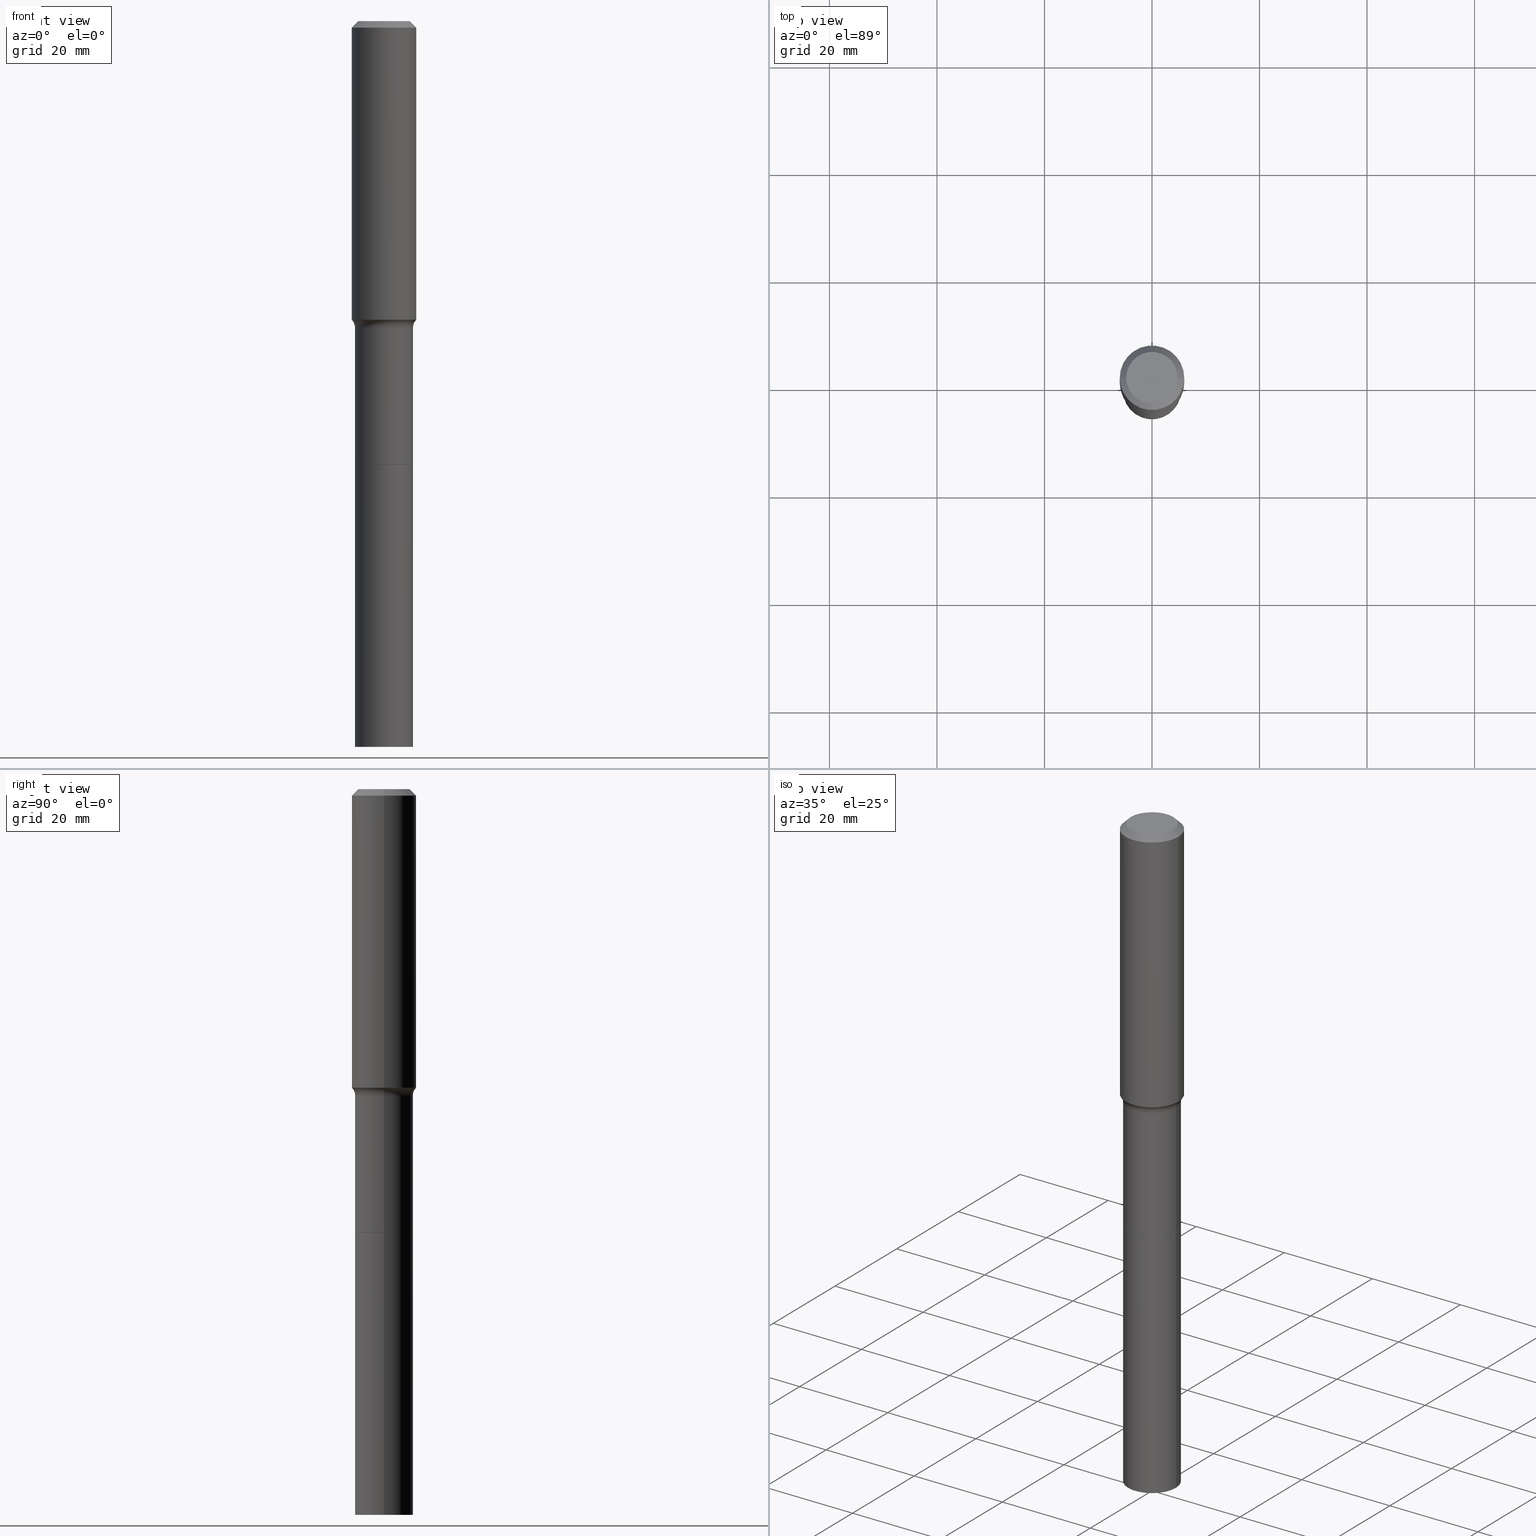
[diagram: canonical four-view strip — front | top / right | iso, engineering-drawing reading convention]
A machine part, canonical four-view strip (front | top / right | iso — engineering-drawing reading convention). The complete STEP part file that produces these views, byte-faithful:
ISO-10303-21;
HEADER;
FILE_DESCRIPTION (( 'STEP AP203' ),
    '1' );
FILE_NAME ('67896.STEP',
    '2025-04-01T15:32:14',
    ( '' ),
    ( '' ),
    'SwSTEP 2.0',
    'SolidWorks 2024',
    '' );
FILE_SCHEMA (( 'CONFIG_CONTROL_DESIGN' ));
ENDSEC;

DATA;
#1 = DIRECTION ( 'NONE',  ( 1.000000000000000000, -6.982962677686261977E-15, 0.000000000000000000 ) ) ;
#2 = CARTESIAN_POINT ( 'NONE',  ( 7.934323541667678728E-29, -1.132811120387658868E-14, -3.244500000000000828 ) ) ;
#3 = AXIS2_PLACEMENT_3D ( 'NONE', #318, #273, #366 ) ;
#4 = PERSON_AND_ORGANIZATION_ROLE ( 'design_supplier' ) ;
#5 = DIRECTION ( 'NONE',  ( 1.000000000000000000, -6.982962677686266711E-15, 0.000000000000000000 ) ) ;
#6 = CARTESIAN_POINT ( 'NONE',  ( 5.354207543847266757E-29, -7.644389360581631556E-15, -2.189440131195000472 ) ) ;
#7 = COORDINATED_UNIVERSAL_TIME_OFFSET ( 5, 0, .BEHIND. ) ;
#8 = DIRECTION ( 'NONE',  ( -2.445468806185136597E-29, 3.491481338843145583E-15, 1.000000000000000000 ) ) ;
#9 = DIRECTION ( 'NONE',  ( 1.000000000000000000, -6.982962677686261977E-15, 0.000000000000000000 ) ) ;
#10 = AXIS2_PLACEMENT_3D ( 'NONE', #414, #55, #93 ) ;
#11 = AXIS2_PLACEMENT_3D ( 'NONE', #163, #77, #398 ) ;
#12 = APPLICATION_PROTOCOL_DEFINITION ( 'international standard', 'config_control_design', 1994, #387 ) ;
#13 = ADVANCED_FACE ( 'NONE', ( #109 ), #155, .T. ) ;
#14 = EDGE_LOOP ( 'NONE', ( #501, #194, #272, #417 ) ) ;
#15 = CLOSED_SHELL ( 'NONE', ( #489, #137, #89, #42 ) ) ;
#16 = CIRCLE ( 'NONE', #277, 0.2125999999999999834 ) ;
#17 = DIRECTION ( 'NONE',  ( 1.000000000000000000, -6.982962677686263555E-15, 0.000000000000000000 ) ) ;
#18 = CIRCLE ( 'NONE', #3, 0.2121000000000000107 ) ;
#19 = ORIENTED_EDGE ( 'NONE', *, *, #441, .F. ) ;
#20 = DIRECTION ( 'NONE',  ( -1.000000000000000000, 7.105427357601001859E-15, 0.000000000000000000 ) ) ;
#21 = CARTESIAN_POINT ( 'NONE',  ( 5.487632001079447088E-29, -7.834884124364020406E-15, -2.244000000000000217 ) ) ;
#22 = LINE ( 'NONE', #178, #47 ) ;
#23 = CC_DESIGN_DATE_AND_TIME_ASSIGNMENT ( #325, #308, ( #247 ) ) ;
#24 = DIRECTION ( 'NONE',  ( -2.445468806185136877E-29, 3.491481338843145188E-15, 1.000000000000000000 ) ) ;
#25 = EDGE_LOOP ( 'NONE', ( #229, #140 ) ) ;
#26 = TOROIDAL_SURFACE ( 'NONE', #462, 0.2925999999999999157, 0.08000000000000008493 ) ;
#27 = FACE_OUTER_BOUND ( 'NONE', #74, .T. ) ;
#28 = ADVANCED_FACE ( 'NONE', ( #195 ), #129, .T. ) ;
#29 = FACE_OUTER_BOUND ( 'NONE', #225, .T. ) ;
#30 = ORIENTED_EDGE ( 'NONE', *, *, #416, .F. ) ;
#31 = CYLINDRICAL_SURFACE ( 'NONE', #84, 0.2125999999999999279 ) ;
#32 = DIRECTION ( 'NONE',  ( -2.445468806185136597E-29, 3.491481338843145583E-15, 1.000000000000000000 ) ) ;
#33 = DIMENSIONAL_EXPONENTS ( 1.000000000000000000, 0.000000000000000000, 0.000000000000000000, 0.000000000000000000, 0.000000000000000000, 0.000000000000000000, 0.000000000000000000 ) ;
#34 = CARTESIAN_POINT ( 'NONE',  ( 0.2361999999999999933, -1.814313362916447440E-15, -0.04724000000000027483 ) ) ;
#35 = ORIENTED_EDGE ( 'NONE', *, *, #410, .F. ) ;
#36 = CARTESIAN_POINT ( 'NONE',  ( 0.000000000000000000, 0.000000000000000000, 0.000000000000000000 ) ) ;
#37 = DIRECTION ( 'NONE',  ( 1.000000000000000000, -6.982962677686275388E-15, 0.000000000000000000 ) ) ;
#38 = ORIENTED_EDGE ( 'NONE', *, *, #320, .T. ) ;
#39 = CIRCLE ( 'NONE', #136, 0.2121000000000000107 ) ;
#40 = VERTEX_POINT ( 'NONE', #307 ) ;
#41 = DIRECTION ( 'NONE',  ( 1.000000000000000000, -6.982962677686269866E-15, 0.000000000000000000 ) ) ;
#42 = ADVANCED_FACE ( 'NONE', ( #392 ), #396, .F. ) ;
#43 = PERSON_AND_ORGANIZATION ( #44, #322 ) ;
#44 = PERSON ( 'UNSPECIFIED', 'UNSPECIFIED', 'UNSPECIFIED', ('UNSPECIFIED'), ('UNSPECIFIED'), ('UNSPECIFIED') ) ;
#45 = DIRECTION ( 'NONE',  ( 1.000000000000000000, -6.982962677686269866E-15, 0.000000000000000000 ) ) ;
#46 = DIRECTION ( 'NONE',  ( -2.445468806185136597E-29, 3.491481338843145583E-15, 1.000000000000000000 ) ) ;
#47 = VECTOR ( 'NONE', #182, 39.37007874015748143 ) ;
#48 = CARTESIAN_POINT ( 'NONE',  ( 7.935546276070771530E-29, -1.132985694454601097E-14, -3.245000000000000995 ) ) ;
#49 = CARTESIAN_POINT ( 'NONE',  ( 0.2340917038704662112, -9.279042991865084568E-15, -2.189440131195000472 ) ) ;
#50 = DIRECTION ( 'NONE',  ( 0.7071067811865453523, -7.319954787623248157E-15, -0.7071067811865496822 ) ) ;
#51 = MECHANICAL_CONTEXT ( 'NONE', #387, 'mechanical' ) ;
#52 = LENGTH_MEASURE_WITH_UNIT ( LENGTH_MEASURE( 0.02539999999999999897 ), #130 );
#53 = DIRECTION ( 'NONE',  ( -2.445468806185136597E-29, 3.491481338843145583E-15, 1.000000000000000000 ) ) ;
#54 = AXIS2_PLACEMENT_3D ( 'NONE', #271, #267, #1 ) ;
#55 = DIRECTION ( 'NONE',  ( 2.438088387897960049E-29, -3.491481338843145188E-15, -1.000000000000000000 ) ) ;
#56 = LOCAL_TIME ( 11, 32, 14.00000000000000000, #7 ) ;
#57 = CARTESIAN_POINT ( 'NONE',  ( 7.935546276070771530E-29, -1.132985694454601097E-14, -3.245000000000000995 ) ) ;
#58 = ORIENTED_EDGE ( 'NONE', *, *, #202, .T. ) ;
#59 = CYLINDRICAL_SURFACE ( 'NONE', #75, 0.2126000000000001777 ) ;
#60 = FACE_OUTER_BOUND ( 'NONE', #215, .T. ) ;
#61 = ORIENTED_EDGE ( 'NONE', *, *, #316, .F. ) ;
#62 = DIRECTION ( 'NONE',  ( -2.445468806185136597E-29, 3.491481338843145583E-15, 1.000000000000000000 ) ) ;
#63 = ADVANCED_FACE ( 'NONE', ( #27 ), #31, .T. ) ;
#64 = VECTOR ( 'NONE', #488, 39.37007874015748854 ) ;
#65 = ORIENTED_EDGE ( 'NONE', *, *, #213, .F. ) ;
#66 = FACE_OUTER_BOUND ( 'NONE', #508, .T. ) ;
#67 = ORIENTED_EDGE ( 'NONE', *, *, #316, .T. ) ;
#68 = ADVANCED_FACE ( 'NONE', ( #95 ), #442, .F. ) ;
#69 = CARTESIAN_POINT ( 'NONE',  ( 7.935546276070771530E-29, -1.132985694454601097E-14, -3.245000000000000995 ) ) ;
#70 = CARTESIAN_POINT ( 'NONE',  ( -0.2925999999999999157, -5.755836079529967466E-15, -2.244000000000000217 ) ) ;
#71 = EDGE_LOOP ( 'NONE', ( #221, #275, #162, #19 ) ) ;
#72 = EDGE_CURVE ( 'NONE', #177, #157, #404, .T. ) ;
#73 = CARTESIAN_POINT ( 'NONE',  ( 5.348678654829147801E-29, -7.636495572371179555E-15, -2.187179260394222169 ) ) ;
#74 = EDGE_LOOP ( 'NONE', ( #108, #201, #220, #35 ) ) ;
#75 = AXIS2_PLACEMENT_3D ( 'NONE', #57, #176, #17 ) ;
#76 = CC_DESIGN_APPROVAL ( #80, ( #406 ) ) ;
#77 = DIRECTION ( 'NONE',  ( -2.445468806185136597E-29, 3.491481338843145583E-15, 1.000000000000000000 ) ) ;
#78 = CARTESIAN_POINT ( 'NONE',  ( 0.000000000000000000, 0.000000000000000000, 0.000000000000000000 ) ) ;
#79 = EDGE_LOOP ( 'NONE', ( #518, #391, #472, #464 ) ) ;
#80 = APPROVAL ( #113, 'UNSPECIFIED' ) ;
#81 = VERTEX_POINT ( 'NONE', #323 ) ;
#82 = EDGE_CURVE ( 'NONE', #496, #293, #437, .T. ) ;
#83 = EDGE_LOOP ( 'NONE', ( #431, #352 ) ) ;
#84 = AXIS2_PLACEMENT_3D ( 'NONE', #128, #367, #447 ) ;
#85 = AXIS2_PLACEMENT_3D ( 'NONE', #6, #8, #289 ) ;
#86 = CARTESIAN_POINT ( 'NONE',  ( 0.2125999999999999279, -1.484577865276100080E-15, 1.036675182534215730E-29 ) ) ;
#87 = CALENDAR_DATE ( 2025, 1, 4 ) ;
#88 = CARTESIAN_POINT ( 'NONE',  ( 5.354207543847266757E-29, -7.644389360581631556E-15, -2.189440131195000472 ) ) ;
#89 = ADVANCED_FACE ( 'NONE', ( #60 ), #59, .T. ) ;
#90 = DIRECTION ( 'NONE',  ( 1.000000000000000000, -6.982962677686263555E-15, 0.000000000000000000 ) ) ;
#91 = AXIS2_PLACEMENT_3D ( 'NONE', #276, #409, #37 ) ;
#92 = DIRECTION ( 'NONE',  ( 1.000000000000000000, -6.982962677686269866E-15, 0.000000000000000000 ) ) ;
#93 = DIRECTION ( 'NONE',  ( -1.000000000000000000, 6.982962677686265922E-15, -4.876176775795935793E-29 ) ) ;
#94 = APPROVAL_ROLE ( '' ) ;
#95 = FACE_OUTER_BOUND ( 'NONE', #25, .T. ) ;
#96 = EDGE_LOOP ( 'NONE', ( #121, #148, #303, #270 ) ) ;
#97 = CARTESIAN_POINT ( 'NONE',  ( 1.155239464041865331E-30, -1.649375784469511612E-16, -0.04724000000000027483 ) ) ;
#98 = DIRECTION ( 'NONE',  ( 1.000000000000000000, -6.982962677686267499E-15, 0.000000000000000000 ) ) ;
#99 = AXIS2_PLACEMENT_3D ( 'NONE', #70, #304, #20 ) ;
#100 = EDGE_LOOP ( 'NONE', ( #469, #314, #188, #493 ) ) ;
#101 = APPROVAL ( #138, 'UNSPECIFIED' ) ;
#102 = LINE ( 'NONE', #263, #477 ) ;
#103 = CARTESIAN_POINT ( 'NONE',  ( 7.935546276070771530E-29, -1.132985694454601097E-14, -3.245000000000000995 ) ) ;
#104 = EDGE_CURVE ( 'NONE', #466, #381, #219, .T. ) ;
#105 = ORIENTED_EDGE ( 'NONE', *, *, #159, .F. ) ;
#106 = ORIENTED_EDGE ( 'NONE', *, *, #120, .F. ) ;
#107 = CARTESIAN_POINT ( 'NONE',  ( 7.935546276070771530E-29, -1.132985694454601097E-14, -3.245000000000000995 ) ) ;
#108 = ORIENTED_EDGE ( 'NONE', *, *, #72, .T. ) ;
#109 = FACE_OUTER_BOUND ( 'NONE', #100, .T. ) ;
#110 = DATE_TIME_ROLE ( 'classification_date' ) ;
#111 = CARTESIAN_POINT ( 'NONE',  ( -0.2125999999999999834, -8.070883807894330677E-15, -3.244500000000000828 ) ) ;
#112 = ORIENTED_EDGE ( 'NONE', *, *, #386, .T. ) ;
#113 = APPROVAL_STATUS ( 'not_yet_approved' ) ;
#114 = DATE_AND_TIME ( #345, #328 ) ;
#115 = FACE_OUTER_BOUND ( 'NONE', #14, .T. ) ;
#116 = ORIENTED_EDGE ( 'NONE', *, *, #72, .F. ) ;
#117 = CIRCLE ( 'NONE', #99, 0.08000000000000009881 ) ;
#118 = DIRECTION ( 'NONE',  ( 1.000000000000000000, -6.982962677686266711E-15, 0.000000000000000000 ) ) ;
#119 = PERSON_AND_ORGANIZATION_ROLE ( 'design_owner' ) ;
#120 = EDGE_CURVE ( 'NONE', #264, #353, #39, .T. ) ;
#121 = ORIENTED_EDGE ( 'NONE', *, *, #330, .F. ) ;
#122 = ORIENTED_EDGE ( 'NONE', *, *, #153, .T. ) ;
#123 = CARTESIAN_POINT ( 'NONE',  ( 0.2340917038704659892, -9.279042991865081412E-15, -2.189440131195000472 ) ) ;
#124 = AXIS2_PLACEMENT_3D ( 'NONE', #21, #351, #183 ) ;
#125 = LINE ( 'NONE', #123, #64 ) ;
#126 = SECURITY_CLASSIFICATION_LEVEL ( 'unclassified' ) ;
#127 =( CONVERSION_BASED_UNIT ( 'INCH', #52 ) LENGTH_UNIT ( ) NAMED_UNIT ( #33 ) );
#128 = CARTESIAN_POINT ( 'NONE',  ( 0.000000000000000000, 0.000000000000000000, 0.000000000000000000 ) ) ;
#129 = CONICAL_SURFACE ( 'NONE', #512, 0.2121000000000000107, 0.7853981633972434429 ) ;
#130 =( LENGTH_UNIT ( ) NAMED_UNIT ( * ) SI_UNIT ( $, .METRE. ) );
#131 = CIRCLE ( 'NONE', #360, 0.2362000000000002709 ) ;
#132 = CC_DESIGN_APPROVAL ( #487, ( #247 ) ) ;
#133 = CARTESIAN_POINT ( 'NONE',  ( 0.2362000000000001321, -1.649375784469497117E-15, 1.151752954443000789E-29 ) ) ;
#134 = CARTESIAN_POINT ( 'NONE',  ( -0.2362000000000001321, 1.678301941865357577E-15, -1.161852468318209457E-29 ) ) ;
#135 = FACE_OUTER_BOUND ( 'NONE', #79, .T. ) ;
#136 = AXIS2_PLACEMENT_3D ( 'NONE', #456, #374, #9 ) ;
#137 = ADVANCED_FACE ( 'NONE', ( #173 ), #287, .T. ) ;
#138 = APPROVAL_STATUS ( 'not_yet_approved' ) ;
#139 = DIRECTION ( 'NONE',  ( 1.000000000000000000, -6.982962677686266711E-15, 0.000000000000000000 ) ) ;
#140 = ORIENTED_EDGE ( 'NONE', *, *, #240, .T. ) ;
#141 = EDGE_CURVE ( 'NONE', #362, #331, #411, .T. ) ;
#142 = DIRECTION ( 'NONE',  ( -2.445468806185136597E-29, 3.491481338843145583E-15, 1.000000000000000000 ) ) ;
#143 = AXIS2_PLACEMENT_3D ( 'NONE', #2, #164, #45 ) ;
#144 = AXIS2_PLACEMENT_3D ( 'NONE', #495, #185, #139 ) ;
#145 = APPROVAL_PERSON_ORGANIZATION ( #146, #101, #457 ) ;
#146 = PERSON_AND_ORGANIZATION ( #44, #322 ) ;
#147 = CARTESIAN_POINT ( 'NONE',  ( 0.000000000000000000, 0.000000000000000000, 0.000000000000000000 ) ) ;
#148 = ORIENTED_EDGE ( 'NONE', *, *, #499, .T. ) ;
#149 = DIRECTION ( 'NONE',  ( -2.445468806185136597E-29, 3.491481338843145583E-15, 1.000000000000000000 ) ) ;
#150 = PERSON_AND_ORGANIZATION ( #44, #322 ) ;
#151 = FACE_OUTER_BOUND ( 'NONE', #96, .T. ) ;
#152 = ORIENTED_EDGE ( 'NONE', *, *, #454, .F. ) ;
#153 = EDGE_CURVE ( 'NONE', #293, #40, #117, .T. ) ;
#154 = APPROVAL_STATUS ( 'not_yet_approved' ) ;
#155 = CONICAL_SURFACE ( 'NONE', #299, 0.2340917038704659892, 0.7504915783576586730 ) ;
#156 = CIRCLE ( 'NONE', #514, 0.2125999999999998724 ) ;
#157 = VERTEX_POINT ( 'NONE', #111 ) ;
#158 = CARTESIAN_POINT ( 'NONE',  ( 7.935546276070771530E-29, -1.132985694454601097E-14, -3.245000000000000995 ) ) ;
#159 = EDGE_CURVE ( 'NONE', #362, #310, #390, .T. ) ;
#160 = CARTESIAN_POINT ( 'NONE',  ( -0.2362000000000002709, -5.958193630505821583E-15, -2.187179260394222169 ) ) ;
#161 = LINE ( 'NONE', #324, #234 ) ;
#162 = ORIENTED_EDGE ( 'NONE', *, *, #410, .T. ) ;
#163 = CARTESIAN_POINT ( 'NONE',  ( -9.427742298522546243E-47, 1.346031739168365344E-32, 3.855188123715862256E-18 ) ) ;
#164 = DIRECTION ( 'NONE',  ( -2.445468806185136597E-29, 3.491481338843145583E-15, 1.000000000000000000 ) ) ;
#165 = VECTOR ( 'NONE', #420, 39.37007874015748143 ) ;
#166 = DIRECTION ( 'NONE',  ( 0.7071067811864026886, -2.468850131080739687E-15, 0.7071067811866923458 ) ) ;
#167 = COORDINATED_UNIVERSAL_TIME_OFFSET ( 5, 0, .BEHIND. ) ;
#168 = DIRECTION ( 'NONE',  ( 1.000000000000000000, -6.982962677686269077E-15, 0.000000000000000000 ) ) ;
#169 = PERSON_AND_ORGANIZATION ( #44, #322 ) ;
#170 = PRODUCT ( '67896', '67896', '', ( #51 ) ) ;
#171 = CARTESIAN_POINT ( 'NONE',  ( 1.155239464041865331E-30, -1.649375784469511612E-16, -0.04724000000000027483 ) ) ;
#172 = APPLICATION_CONTEXT ( 'configuration controlled 3d designs of mechanical parts and assemblies' ) ;
#173 = FACE_OUTER_BOUND ( 'NONE', #83, .T. ) ;
#174 = CIRCLE ( 'NONE', #393, 0.2362000000000002709 ) ;
#175 = CARTESIAN_POINT ( 'NONE',  ( -0.2361999999999999933, 1.484438206022545019E-15, -0.04724000000000027483 ) ) ;
#176 = DIRECTION ( 'NONE',  ( -2.445468806185136597E-29, 3.491481338843145583E-15, 1.000000000000000000 ) ) ;
#177 = VERTEX_POINT ( 'NONE', #181 ) ;
#178 = CARTESIAN_POINT ( 'NONE',  ( -0.2121000000000000107, -9.822795801998838791E-15, -3.245000000000000995 ) ) ;
#179 = TOROIDAL_SURFACE ( 'NONE', #124, 0.2925999999999999157, 0.08000000000000008493 ) ;
#180 = APPROVAL_PERSON_ORGANIZATION ( #446, #80, #94 ) ;
#181 = CARTESIAN_POINT ( 'NONE',  ( 0.2125999999999999834, -1.281268906915268895E-14, -3.244500000000000828 ) ) ;
#182 = DIRECTION ( 'NONE',  ( -0.7071067811864026886, 7.493145998869830357E-15, 0.7071067811866923458 ) ) ;
#183 = DIRECTION ( 'NONE',  ( 1.000000000000000000, -6.982962677686268288E-15, 4.883557194083114022E-29 ) ) ;
#184 = EDGE_LOOP ( 'NONE', ( #306, #58, #241, #235 ) ) ;
#185 = DIRECTION ( 'NONE',  ( -2.445468806185136597E-29, 3.491481338843145583E-15, 1.000000000000000000 ) ) ;
#186 = AXIS2_PLACEMENT_3D ( 'NONE', #78, #500, #297 ) ;
#187 = CONICAL_SURFACE ( 'NONE', #377, 0.2361999999999999933, 0.7853981633974452814 ) ;
#188 = ORIENTED_EDGE ( 'NONE', *, *, #274, .F. ) ;
#189 = CARTESIAN_POINT ( 'NONE',  ( 0.2125999999999998724, -9.319461989640119105E-15, -2.244000000000000217 ) ) ;
#190 = CC_DESIGN_PERSON_AND_ORGANIZATION_ASSIGNMENT ( #358, #119, ( #170 ) ) ;
#191 = VERTEX_POINT ( 'NONE', #189 ) ;
#192 = APPROVAL_DATE_TIME ( #236, #80 ) ;
#193 = FACE_OUTER_BOUND ( 'NONE', #71, .T. ) ;
#194 = ORIENTED_EDGE ( 'NONE', *, *, #104, .T. ) ;
#195 = FACE_OUTER_BOUND ( 'NONE', #426, .T. ) ;
#196 = CARTESIAN_POINT ( 'NONE',  ( -0.2126000000000000112, -1.343292627402269149E-14, -3.245000000000000995 ) ) ;
#197 = CIRCLE ( 'NONE', #11, 0.1889600000000000168 ) ;
#198 = VERTEX_POINT ( 'NONE', #34 ) ;
#199 = ADVANCED_FACE ( 'NONE', ( #259 ), #179, .F. ) ;
#200 = CARTESIAN_POINT ( 'NONE',  ( -0.2340917038704659892, -5.981067763712990381E-15, -2.189440131195000472 ) ) ;
#201 = ORIENTED_EDGE ( 'NONE', *, *, #296, .T. ) ;
#202 = EDGE_CURVE ( 'NONE', #466, #81, #174, .T. ) ;
#203 = AXIS2_PLACEMENT_3D ( 'NONE', #147, #142, #226 ) ;
#204 = DIRECTION ( 'NONE',  ( -1.000000000000000000, 6.982962677686266711E-15, 0.000000000000000000 ) ) ;
#205 = CC_DESIGN_APPROVAL ( #101, ( #335 ) ) ;
#206 = DIRECTION ( 'NONE',  ( -2.445468806185136597E-29, 3.491481338843145583E-15, 1.000000000000000000 ) ) ;
#207 = EDGE_CURVE ( 'NONE', #331, #317, #102, .T. ) ;
#208 =( NAMED_UNIT ( * ) PLANE_ANGLE_UNIT ( ) SI_UNIT ( $, .RADIAN. ) );
#209 = DIRECTION ( 'NONE',  ( -2.445468806185136597E-29, 3.491481338843145583E-15, 1.000000000000000000 ) ) ;
#210 = DIRECTION ( 'NONE',  ( 1.000000000000000000, -6.982962677686267499E-15, 0.000000000000000000 ) ) ;
#211 = AXIS2_PLACEMENT_3D ( 'NONE', #88, #370, #5 ) ;
#212 = CARTESIAN_POINT ( 'NONE',  ( 7.935546276070771530E-29, -1.132985694454601097E-14, -3.245000000000000995 ) ) ;
#213 = EDGE_CURVE ( 'NONE', #310, #317, #415, .T. ) ;
#214 = VECTOR ( 'NONE', #50, 39.37007874015748143 ) ;
#215 = EDGE_LOOP ( 'NONE', ( #105, #344, #516, #65 ) ) ;
#216 = CYLINDRICAL_SURFACE ( 'NONE', #479, 0.2126000000000001777 ) ;
#217 = ADVANCED_FACE ( 'NONE', ( #115 ), #458, .T. ) ;
#218 = CARTESIAN_POINT ( 'NONE',  ( 5.487632001079447088E-29, -7.834884124364020406E-15, -2.244000000000000217 ) ) ;
#219 = LINE ( 'NONE', #134, #255 ) ;
#220 = ORIENTED_EDGE ( 'NONE', *, *, #380, .F. ) ;
#221 = ORIENTED_EDGE ( 'NONE', *, *, #296, .F. ) ;
#222 = AXIS2_PLACEMENT_3D ( 'NONE', #69, #511, #389 ) ;
#223 = CIRCLE ( 'NONE', #242, 0.1889600000000000168 ) ;
#224 = CARTESIAN_POINT ( 'NONE',  ( 5.354207543847266757E-29, -7.644389360581631556E-15, -2.189440131195000472 ) ) ;
#225 = EDGE_LOOP ( 'NONE', ( #424, #106 ) ) ;
#226 = DIRECTION ( 'NONE',  ( 1.000000000000000000, -6.982962677686266711E-15, 4.876176775795936353E-29 ) ) ;
#227 = ORIENTED_EDGE ( 'NONE', *, *, #153, .F. ) ;
#228 = CYLINDRICAL_SURFACE ( 'NONE', #203, 0.2362000000000001321 ) ;
#229 = ORIENTED_EDGE ( 'NONE', *, *, #454, .T. ) ;
#230 = ORIENTED_EDGE ( 'NONE', *, *, #408, .T. ) ;
#231 = COORDINATED_UNIVERSAL_TIME_OFFSET ( 5, 0, .BEHIND. ) ;
#232 = CC_DESIGN_PERSON_AND_ORGANIZATION_ASSIGNMENT ( #43, #4, ( #406 ) ) ;
#233 = CARTESIAN_POINT ( 'NONE',  ( 5.487632001079447088E-29, -7.834884124364020406E-15, -2.244000000000000217 ) ) ;
#234 = VECTOR ( 'NONE', #166, 39.37007874015748143 ) ;
#235 = ORIENTED_EDGE ( 'NONE', *, *, #507, .F. ) ;
#236 = DATE_AND_TIME ( #87, #291 ) ;
#237 = DIRECTION ( 'NONE',  ( 1.000000000000000000, -6.982962677686265922E-15, 4.876176775795935793E-29 ) ) ;
#238 = EDGE_LOOP ( 'NONE', ( #337, #122, #421, #395 ) ) ;
#239 = CYLINDRICAL_SURFACE ( 'NONE', #455, 0.2125999999999999279 ) ;
#240 = EDGE_CURVE ( 'NONE', #407, #355, #223, .T. ) ;
#241 = ORIENTED_EDGE ( 'NONE', *, *, #375, .T. ) ;
#242 = AXIS2_PLACEMENT_3D ( 'NONE', #418, #62, #348 ) ;
#243 = ORIENTED_EDGE ( 'NONE', *, *, #240, .F. ) ;
#244 = ADVANCED_FACE ( 'NONE', ( #29 ), #425, .F. ) ;
#245 = CARTESIAN_POINT ( 'NONE',  ( 5.487632001079447088E-29, -7.834884124364020406E-15, -2.244000000000000217 ) ) ;
#246 = PERSON_AND_ORGANIZATION_ROLE ( 'creator' ) ;
#247 = PRODUCT_DEFINITION ( 'UNKNOWN', '', #406, #440 ) ;
#248 = DIRECTION ( 'NONE',  ( 1.000000000000000000, 0.000000000000000000, 0.000000000000000000 ) ) ;
#249 = CIRCLE ( 'NONE', #85, 0.2340917038704659892 ) ;
#250 = ADVANCED_FACE ( 'NONE', ( #385 ), #26, .F. ) ;
#251 = CARTESIAN_POINT ( 'NONE',  ( 1.299766670487400218E-28, -1.855722331595131973E-14, -5.315000000000000391 ) ) ;
#252 = COORDINATED_UNIVERSAL_TIME_OFFSET ( 5, 0, .BEHIND. ) ;
#253 = EDGE_LOOP ( 'NONE', ( #227, #349, #403, #475 ) ) ;
#254 = ADVANCED_FACE ( 'NONE', ( #151 ), #346, .T. ) ;
#255 = VECTOR ( 'NONE', #292, 39.37007874015748143 ) ;
#256 = LOCAL_TIME ( 11, 32, 14.00000000000000000, #167 ) ;
#257 = ADVANCED_BREP_SHAPE_REPRESENTATION ( '67896', ( #461, #480, #384 ), #412 ) ;
#258 = CARTESIAN_POINT ( 'NONE',  ( -0.2126000000000003720, -1.343292627402268675E-14, -5.315000000000000391 ) ) ;
#259 = FACE_OUTER_BOUND ( 'NONE', #253, .T. ) ;
#260 = CONICAL_SURFACE ( 'NONE', #54, 0.2121000000000000107, 0.7853981633972434429 ) ;
#261 = CARTESIAN_POINT ( 'NONE',  ( -0.2125999999999999279, 1.510613856225972483E-15, -1.045765600188192591E-29 ) ) ;
#262 = CARTESIAN_POINT ( 'NONE',  ( 5.354207543847266757E-29, -7.644389360581631556E-15, -2.189440131195000472 ) ) ;
#263 = CARTESIAN_POINT ( 'NONE',  ( 0.2126000000000001777, -1.281443480982211124E-14, -3.245000000000000995 ) ) ;
#264 = VERTEX_POINT ( 'NONE', #302 ) ;
#265 = EDGE_LOOP ( 'NONE', ( #436, #152, #340, #363 ) ) ;
#266 = CALENDAR_DATE ( 2025, 1, 4 ) ;
#267 = DIRECTION ( 'NONE',  ( -2.445468806185136597E-29, 3.491481338843145583E-15, 1.000000000000000000 ) ) ;
#268 = DIRECTION ( 'NONE',  ( -2.438088387897960049E-29, 3.491481338843145188E-15, 1.000000000000000000 ) ) ;
#269 = AXIS2_PLACEMENT_3D ( 'NONE', #218, #209, #92 ) ;
#270 = ORIENTED_EDGE ( 'NONE', *, *, #202, .F. ) ;
#271 = CARTESIAN_POINT ( 'NONE',  ( 7.935546276070771530E-29, -1.132985694454601097E-14, -3.245000000000000995 ) ) ;
#272 = ORIENTED_EDGE ( 'NONE', *, *, #294, .F. ) ;
#273 = DIRECTION ( 'NONE',  ( -2.445468806185136597E-29, 3.491481338843145583E-15, 1.000000000000000000 ) ) ;
#274 = EDGE_CURVE ( 'NONE', #81, #466, #131, .T. ) ;
#275 = ORIENTED_EDGE ( 'NONE', *, *, #416, .T. ) ;
#276 = CARTESIAN_POINT ( 'NONE',  ( 0.2925999999999999157, -9.878099003855020758E-15, -2.244000000000000217 ) ) ;
#277 = AXIS2_PLACEMENT_3D ( 'NONE', #471, #32, #428 ) ;
#278 = DIRECTION ( 'NONE',  ( -1.000000000000000000, 6.982962677686265922E-15, -4.876176775795935793E-29 ) ) ;
#279 = DIRECTION ( 'NONE',  ( -1.000000000000000000, 6.982962677686266711E-15, 0.000000000000000000 ) ) ;
#280 = PERSON_AND_ORGANIZATION_ROLE ( 'classification_officer' ) ;
#281 = CARTESIAN_POINT ( 'NONE',  ( -4.713871149261273121E-47, 6.730158695841826722E-33, 1.927594061857931128E-18 ) ) ;
#282 = ADVANCED_FACE ( 'NONE', ( #423 ), #228, .T. ) ;
#283 = DIRECTION ( 'NONE',  ( 0.000000000000000000, 0.000000000000000000, 1.000000000000000000 ) ) ;
#284 = AXIS2_PLACEMENT_3D ( 'NONE', #281, #364, #278 ) ;
#285 = APPROVAL_PERSON_ORGANIZATION ( #150, #487, #513 ) ;
#286 = CARTESIAN_POINT ( 'NONE',  ( 0.1889600000000000168, -1.540873453589747738E-15, 3.855188123725863225E-18 ) ) ;
#287 = PLANE ( 'NONE',  #10 ) ;
#288 = DIRECTION ( 'NONE',  ( -2.445468806185136597E-29, 3.491481338843145583E-15, 1.000000000000000000 ) ) ;
#289 = DIRECTION ( 'NONE',  ( 1.000000000000000000, -6.982962677686266711E-15, 0.000000000000000000 ) ) ;
#290 = CIRCLE ( 'NONE', #492, 0.2126000000000003443 ) ;
#291 = LOCAL_TIME ( 11, 32, 14.00000000000000000, #427 ) ;
#292 = DIRECTION ( 'NONE',  ( -2.445468806185136877E-29, 3.491481338843145188E-15, 1.000000000000000000 ) ) ;
#293 = VERTEX_POINT ( 'NONE', #295 ) ;
#294 = EDGE_CURVE ( 'NONE', #198, #381, #300, .T. ) ;
#295 = CARTESIAN_POINT ( 'NONE',  ( -0.2340917038704662112, -5.981067763712988803E-15, -2.189440131195000472 ) ) ;
#296 = EDGE_CURVE ( 'NONE', #157, #40, #498, .T. ) ;
#297 = DIRECTION ( 'NONE',  ( 1.000000000000000000, -6.982962677686266711E-15, 4.876176775795936353E-29 ) ) ;
#298 = ORIENTED_EDGE ( 'NONE', *, *, #342, .F. ) ;
#299 = AXIS2_PLACEMENT_3D ( 'NONE', #262, #422, #118 ) ;
#300 = CIRCLE ( 'NONE', #144, 0.2361999999999999933 ) ;
#301 = CIRCLE ( 'NONE', #515, 0.2361999999999999933 ) ;
#302 = CARTESIAN_POINT ( 'NONE',  ( -0.2121000000000000107, -9.820146574824726801E-15, -3.245000000000000995 ) ) ;
#303 = ORIENTED_EDGE ( 'NONE', *, *, #333, .T. ) ;
#304 = DIRECTION ( 'NONE',  ( 7.105427357601001859E-15, 1.000000000000000000, -3.491481338843145583E-15 ) ) ;
#305 = ADVANCED_FACE ( 'NONE', ( #66 ), #485, .T. ) ;
#306 = ORIENTED_EDGE ( 'NONE', *, *, #104, .F. ) ;
#307 = CARTESIAN_POINT ( 'NONE',  ( -0.2125999999999998724, -8.070883807894330677E-15, -2.244000000000000217 ) ) ;
#308 = DATE_TIME_ROLE ( 'creation_date' ) ;
#309 = DIRECTION ( 'NONE',  ( -2.445468806185136597E-29, 3.491481338843145583E-15, 1.000000000000000000 ) ) ;
#310 = VERTEX_POINT ( 'NONE', #196 ) ;
#311 = CALENDAR_DATE ( 2025, 1, 4 ) ;
#312 = CIRCLE ( 'NONE', #91, 0.08000000000000009881 ) ;
#313 = VECTOR ( 'NONE', #478, 39.37007874015748854 ) ;
#314 = ORIENTED_EDGE ( 'NONE', *, *, #330, .T. ) ;
#315 = APPLICATION_PROTOCOL_DEFINITION ( 'international standard', 'config_control_design', 1994, #172 ) ;
#316 = EDGE_CURVE ( 'NONE', #353, #177, #161, .T. ) ;
#317 = VERTEX_POINT ( 'NONE', #474 ) ;
#318 = CARTESIAN_POINT ( 'NONE',  ( 7.935546276070771530E-29, -1.132985694454601097E-14, -3.245000000000000995 ) ) ;
#319 = UNCERTAINTY_MEASURE_WITH_UNIT (LENGTH_MEASURE( 1.000000000000000082E-05 ), #127, 'distance_accuracy_value', 'NONE');
#320 = EDGE_CURVE ( 'NONE', #353, #264, #18, .T. ) ;
#321 = AXIS2_PLACEMENT_3D ( 'NONE', #224, #309, #399 ) ;
#322 = ORGANIZATION ( 'UNSPECIFIED', 'UNSPECIFIED', '' ) ;
#323 = CARTESIAN_POINT ( 'NONE',  ( 0.2362000000000002709, -9.285871356840677658E-15, -2.187179260394222169 ) ) ;
#324 = CARTESIAN_POINT ( 'NONE',  ( 0.2121000000000000107, -1.281094332848326666E-14, -3.245000000000000995 ) ) ;
#325 = DATE_AND_TIME ( #266, #256 ) ;
#326 = LINE ( 'NONE', #373, #214 ) ;
#327 = VECTOR ( 'NONE', #491, 39.37007874015748143 ) ;
#328 = LOCAL_TIME ( 11, 32, 14.00000000000000000, #231 ) ;
#329 =( NAMED_UNIT ( * ) SI_UNIT ( $, .STERADIAN. ) SOLID_ANGLE_UNIT ( ) );
#330 = EDGE_CURVE ( 'NONE', #293, #466, #434, .T. ) ;
#331 = VERTEX_POINT ( 'NONE', #476 ) ;
#332 = CARTESIAN_POINT ( 'NONE',  ( 0.2121000000000000107, -1.281094332848326666E-14, -3.245000000000000995 ) ) ;
#333 = EDGE_CURVE ( 'NONE', #496, #81, #125, .T. ) ;
#334 = VECTOR ( 'NONE', #402, 39.37007874015748143 ) ;
#335 = SECURITY_CLASSIFICATION ( '', '', #126 ) ;
#336 = CARTESIAN_POINT ( 'NONE',  ( 5.348678654829147801E-29, -7.636495572371179555E-15, -2.187179260394222169 ) ) ;
#337 = ORIENTED_EDGE ( 'NONE', *, *, #499, .F. ) ;
#338 = APPROVAL_DATE_TIME ( #114, #101 ) ;
#339 = DIRECTION ( 'NONE',  ( 1.000000000000000000, -6.982962677686269077E-15, 0.000000000000000000 ) ) ;
#340 = ORIENTED_EDGE ( 'NONE', *, *, #342, .T. ) ;
#341 = LINE ( 'NONE', #86, #334 ) ;
#342 = EDGE_CURVE ( 'NONE', #355, #381, #444, .T. ) ;
#343 = DIRECTION ( 'NONE',  ( 1.000000000000000000, -6.982962677686269077E-15, 0.000000000000000000 ) ) ;
#344 = ORIENTED_EDGE ( 'NONE', *, *, #141, .T. ) ;
#345 = CALENDAR_DATE ( 2025, 1, 4 ) ;
#346 = CONICAL_SURFACE ( 'NONE', #321, 0.2340917038704659892, 0.7504915783576586730 ) ;
#347 = EDGE_CURVE ( 'NONE', #331, #362, #290, .T. ) ;
#348 = DIRECTION ( 'NONE',  ( 1.000000000000000000, -6.982962677686266711E-15, 4.876185090822587894E-29 ) ) ;
#349 = ORIENTED_EDGE ( 'NONE', *, *, #82, .F. ) ;
#350 = SHAPE_DEFINITION_REPRESENTATION ( #459, #257 ) ;
#351 = DIRECTION ( 'NONE',  ( -2.445468806185136597E-29, 3.491481338843145583E-15, 1.000000000000000000 ) ) ;
#352 = ORIENTED_EDGE ( 'NONE', *, *, #141, .F. ) ;
#353 = VERTEX_POINT ( 'NONE', #332 ) ;
#354 = CARTESIAN_POINT ( 'NONE',  ( 0.000000000000000000, 0.000000000000000000, 0.000000000000000000 ) ) ;
#355 = VERTEX_POINT ( 'NONE', #484 ) ;
#356 = CC_DESIGN_PERSON_AND_ORGANIZATION_ASSIGNMENT ( #473, #483, ( #247 ) ) ;
#357 = DIRECTION ( 'NONE',  ( 1.000000000000000000, -6.982962677686261977E-15, 0.000000000000000000 ) ) ;
#358 = PERSON_AND_ORGANIZATION ( #44, #322 ) ;
#359 = DIRECTION ( 'NONE',  ( -2.445468806185136597E-29, 3.491481338843145583E-15, 1.000000000000000000 ) ) ;
#360 = AXIS2_PLACEMENT_3D ( 'NONE', #336, #503, #339 ) ;
#361 = LOCAL_TIME ( 11, 32, 14.00000000000000000, #252 ) ;
#362 = VERTEX_POINT ( 'NONE', #258 ) ;
#363 = ORIENTED_EDGE ( 'NONE', *, *, #507, .T. ) ;
#364 = DIRECTION ( 'NONE',  ( 2.438088387897960049E-29, -3.491481338843145188E-15, -1.000000000000000000 ) ) ;
#365 = FACE_OUTER_BOUND ( 'NONE', #510, .T. ) ;
#366 = DIRECTION ( 'NONE',  ( 1.000000000000000000, -6.982962677686261977E-15, 0.000000000000000000 ) ) ;
#367 = DIRECTION ( 'NONE',  ( -2.445468806185136597E-29, 3.491481338843145583E-15, 1.000000000000000000 ) ) ;
#368 = DATE_AND_TIME ( #397, #361 ) ;
#369 = AXIS2_PLACEMENT_3D ( 'NONE', #103, #268, #237 ) ;
#370 = DIRECTION ( 'NONE',  ( -2.445468806185136597E-29, 3.491481338843145583E-15, 1.000000000000000000 ) ) ;
#371 = DIRECTION ( 'NONE',  ( -2.445468806185136877E-29, 3.491481338843145188E-15, 1.000000000000000000 ) ) ;
#372 = PERSON_AND_ORGANIZATION ( #44, #322 ) ;
#373 = CARTESIAN_POINT ( 'NONE',  ( 0.2361999999999999933, -1.785387205520586782E-15, -0.04724000000000027483 ) ) ;
#374 = DIRECTION ( 'NONE',  ( -2.445468806185136597E-29, 3.491481338843145583E-15, 1.000000000000000000 ) ) ;
#375 = EDGE_CURVE ( 'NONE', #81, #198, #482, .T. ) ;
#376 = DIRECTION ( 'NONE',  ( 1.000000000000000000, -6.982962677686266711E-15, 0.000000000000000000 ) ) ;
#377 = AXIS2_PLACEMENT_3D ( 'NONE', #171, #450, #204 ) ;
#378 = ORIENTED_EDGE ( 'NONE', *, *, #120, .T. ) ;
#379 = CARTESIAN_POINT ( 'NONE',  ( -0.2361999999999999933, -2.222414633543706869E-15, -0.04724000000000027483 ) ) ;
#380 = EDGE_CURVE ( 'NONE', #191, #40, #405, .T. ) ;
#381 = VERTEX_POINT ( 'NONE', #379 ) ;
#382 = CLOSED_SHELL ( 'NONE', ( #443, #305, #217, #13, #250, #63, #460, #199, #254, #282, #504, #68, #244, #28 ) ) ;
#383 = VECTOR ( 'NONE', #24, 39.37007874015748143 ) ;
#384 = AXIS2_PLACEMENT_3D ( 'NONE', #36, #283, #248 ) ;
#385 = FACE_OUTER_BOUND ( 'NONE', #238, .T. ) ;
#386 = EDGE_CURVE ( 'NONE', #317, #310, #502, .T. ) ;
#387 = APPLICATION_CONTEXT ( 'configuration controlled 3d designs of mechanical parts and assemblies' ) ;
#388 = DIRECTION ( 'NONE',  ( 1.000000000000000000, -6.982962677686268288E-15, 4.883557194083114022E-29 ) ) ;
#389 = DIRECTION ( 'NONE',  ( -1.000000000000000000, 6.982962677686265922E-15, -4.876176775795935793E-29 ) ) ;
#390 = LINE ( 'NONE', #430, #383 ) ;
#391 = ORIENTED_EDGE ( 'NONE', *, *, #159, .T. ) ;
#392 = FACE_OUTER_BOUND ( 'NONE', #490, .T. ) ;
#393 = AXIS2_PLACEMENT_3D ( 'NONE', #73, #465, #343 ) ;
#394 = DIRECTION ( 'NONE',  ( -2.445468806185136597E-29, 3.491481338843145583E-15, 1.000000000000000000 ) ) ;
#395 = ORIENTED_EDGE ( 'NONE', *, *, #435, .F. ) ;
#396 = PLANE ( 'NONE',  #222 ) ;
#397 = CALENDAR_DATE ( 2025, 1, 4 ) ;
#398 = DIRECTION ( 'NONE',  ( 1.000000000000000000, -6.982962677686266711E-15, 4.876185090822587894E-29 ) ) ;
#399 = DIRECTION ( 'NONE',  ( 1.000000000000000000, -6.982962677686266711E-15, 0.000000000000000000 ) ) ;
#400 = EDGE_CURVE ( 'NONE', #407, #198, #326, .T. ) ;
#401 = ORIENTED_EDGE ( 'NONE', *, *, #408, .F. ) ;
#402 = DIRECTION ( 'NONE',  ( -2.445468806185136877E-29, 3.491481338843145188E-15, 1.000000000000000000 ) ) ;
#403 = ORIENTED_EDGE ( 'NONE', *, *, #435, .T. ) ;
#404 = CIRCLE ( 'NONE', #143, 0.2125999999999999834 ) ;
#405 = CIRCLE ( 'NONE', #269, 0.2125999999999998724 ) ;
#406 = PRODUCT_DEFINITION_FORMATION_WITH_SPECIFIED_SOURCE ( 'ANY', '', #170, .NOT_KNOWN. ) ;
#407 = VERTEX_POINT ( 'NONE', #286 ) ;
#408 = EDGE_CURVE ( 'NONE', #264, #157, #22, .T. ) ;
#409 = DIRECTION ( 'NONE',  ( -6.982962677686266711E-15, -1.000000000000000000, 3.491481338843145583E-15 ) ) ;
#410 = EDGE_CURVE ( 'NONE', #177, #191, #341, .T. ) ;
#411 = CIRCLE ( 'NONE', #445, 0.2126000000000003443 ) ;
#412 =( GEOMETRIC_REPRESENTATION_CONTEXT ( 3 ) GLOBAL_UNCERTAINTY_ASSIGNED_CONTEXT ( ( #319 ) ) GLOBAL_UNIT_ASSIGNED_CONTEXT ( ( #127, #208, #329 ) ) REPRESENTATION_CONTEXT ( 'NONE', 'WORKASPACE' ) );
#413 = CC_DESIGN_DATE_AND_TIME_ASSIGNMENT ( #432, #110, ( #335 ) ) ;
#414 = CARTESIAN_POINT ( 'NONE',  ( 1.299766670487400218E-28, -1.855722331595131973E-14, -5.315000000000000391 ) ) ;
#415 = CIRCLE ( 'NONE', #452, 0.2126000000000000112 ) ;
#416 = EDGE_CURVE ( 'NONE', #157, #177, #16, .T. ) ;
#417 = ORIENTED_EDGE ( 'NONE', *, *, #375, .F. ) ;
#418 = CARTESIAN_POINT ( 'NONE',  ( -9.427742298522546243E-47, 1.346031739168365344E-32, 3.855188123715862256E-18 ) ) ;
#419 = AXIS2_PLACEMENT_3D ( 'NONE', #48, #206, #168 ) ;
#420 = DIRECTION ( 'NONE',  ( -2.445468806185136877E-29, 3.491481338843145188E-15, 1.000000000000000000 ) ) ;
#421 = ORIENTED_EDGE ( 'NONE', *, *, #441, .T. ) ;
#422 = DIRECTION ( 'NONE',  ( -2.445468806185136597E-29, 3.491481338843145583E-15, 1.000000000000000000 ) ) ;
#423 = FACE_OUTER_BOUND ( 'NONE', #184, .T. ) ;
#424 = ORIENTED_EDGE ( 'NONE', *, *, #320, .F. ) ;
#425 = PLANE ( 'NONE',  #369 ) ;
#426 = EDGE_LOOP ( 'NONE', ( #401, #378, #67, #30 ) ) ;
#427 = COORDINATED_UNIVERSAL_TIME_OFFSET ( 5, 0, .BEHIND. ) ;
#428 = DIRECTION ( 'NONE',  ( 1.000000000000000000, -6.982962677686269866E-15, 0.000000000000000000 ) ) ;
#429 = AXIS2_PLACEMENT_3D ( 'NONE', #439, #517, #279 ) ;
#430 = CARTESIAN_POINT ( 'NONE',  ( -0.2126000000000001777, -9.819243088320037104E-15, -3.245000000000000995 ) ) ;
#431 = ORIENTED_EDGE ( 'NONE', *, *, #347, .F. ) ;
#432 = DATE_AND_TIME ( #311, #56 ) ;
#433 = ORIENTED_EDGE ( 'NONE', *, *, #400, .T. ) ;
#434 = LINE ( 'NONE', #200, #313 ) ;
#435 = EDGE_CURVE ( 'NONE', #496, #191, #312, .T. ) ;
#436 = ORIENTED_EDGE ( 'NONE', *, *, #400, .F. ) ;
#437 = CIRCLE ( 'NONE', #211, 0.2340917038704659892 ) ;
#438 = VECTOR ( 'NONE', #371, 39.37007874015748143 ) ;
#439 = CARTESIAN_POINT ( 'NONE',  ( 1.155239464041865331E-30, -1.649375784469511612E-16, -0.04724000000000027483 ) ) ;
#440 = DESIGN_CONTEXT ( 'detailed design', #172, 'design' ) ;
#441 = EDGE_CURVE ( 'NONE', #40, #191, #156, .T. ) ;
#442 = PLANE ( 'NONE',  #284 ) ;
#443 = ADVANCED_FACE ( 'NONE', ( #365 ), #260, .T. ) ;
#444 = LINE ( 'NONE', #175, #327 ) ;
#445 = AXIS2_PLACEMENT_3D ( 'NONE', #251, #486, #210 ) ;
#446 = PERSON_AND_ORGANIZATION ( #44, #322 ) ;
#447 = DIRECTION ( 'NONE',  ( 1.000000000000000000, -6.982962677686268288E-15, 4.876176775795936353E-29 ) ) ;
#448 = FACE_OUTER_BOUND ( 'NONE', #265, .T. ) ;
#449 = PRODUCT_RELATED_PRODUCT_CATEGORY ( 'detail', '', ( #170 ) ) ;
#450 = DIRECTION ( 'NONE',  ( 2.445468806185136597E-29, -3.491481338843145583E-15, -1.000000000000000000 ) ) ;
#451 = CARTESIAN_POINT ( 'NONE',  ( 1.299766670487400218E-28, -1.855722331595131973E-14, -5.315000000000000391 ) ) ;
#452 = AXIS2_PLACEMENT_3D ( 'NONE', #107, #468, #506 ) ;
#453 = ORIENTED_EDGE ( 'NONE', *, *, #294, .T. ) ;
#454 = EDGE_CURVE ( 'NONE', #355, #407, #197, .T. ) ;
#455 = AXIS2_PLACEMENT_3D ( 'NONE', #354, #359, #509 ) ;
#456 = CARTESIAN_POINT ( 'NONE',  ( 7.935546276070771530E-29, -1.132985694454601097E-14, -3.245000000000000995 ) ) ;
#457 = APPROVAL_ROLE ( '' ) ;
#458 = CYLINDRICAL_SURFACE ( 'NONE', #186, 0.2362000000000001321 ) ;
#459 = PRODUCT_DEFINITION_SHAPE ( 'NONE', 'NONE',  #247 ) ;
#460 = ADVANCED_FACE ( 'NONE', ( #193 ), #239, .T. ) ;
#461 = MANIFOLD_SOLID_BREP ( 'Body-Move/Copy2[1]', #15 ) ;
#462 = AXIS2_PLACEMENT_3D ( 'NONE', #233, #394, #388 ) ;
#463 = DIRECTION ( 'NONE',  ( -2.445468806185136877E-29, 3.491481338843145188E-15, 1.000000000000000000 ) ) ;
#464 = ORIENTED_EDGE ( 'NONE', *, *, #207, .F. ) ;
#465 = DIRECTION ( 'NONE',  ( -2.445468806185136597E-29, 3.491481338843145583E-15, 1.000000000000000000 ) ) ;
#466 = VERTEX_POINT ( 'NONE', #160 ) ;
#467 = CC_DESIGN_PERSON_AND_ORGANIZATION_ASSIGNMENT ( #169, #280, ( #335 ) ) ;
#468 = DIRECTION ( 'NONE',  ( -2.445468806185136597E-29, 3.491481338843145583E-15, 1.000000000000000000 ) ) ;
#469 = ORIENTED_EDGE ( 'NONE', *, *, #82, .T. ) ;
#470 = APPROVAL_DATE_TIME ( #368, #487 ) ;
#471 = CARTESIAN_POINT ( 'NONE',  ( 7.934323541667678728E-29, -1.132811120387658868E-14, -3.244500000000000828 ) ) ;
#472 = ORIENTED_EDGE ( 'NONE', *, *, #386, .F. ) ;
#473 = PERSON_AND_ORGANIZATION ( #44, #322 ) ;
#474 = CARTESIAN_POINT ( 'NONE',  ( 0.2126000000000000112, -1.281443480982211124E-14, -3.245000000000000995 ) ) ;
#475 = ORIENTED_EDGE ( 'NONE', *, *, #380, .T. ) ;
#476 = CARTESIAN_POINT ( 'NONE',  ( 0.2126000000000003443, -2.004180118122742316E-14, -5.315000000000000391 ) ) ;
#477 = VECTOR ( 'NONE', #463, 39.37007874015748143 ) ;
#478 = DIRECTION ( 'NONE',  ( -0.6819983600625694198, 7.399397606724559522E-15, 0.7313537016191042905 ) ) ;
#479 = AXIS2_PLACEMENT_3D ( 'NONE', #212, #46, #90 ) ;
#480 = MANIFOLD_SOLID_BREP ( 'Body-Move/Copy2[2]', #382 ) ;
#481 = DIRECTION ( 'NONE',  ( -2.445468806185136597E-29, 3.491481338843145583E-15, 1.000000000000000000 ) ) ;
#482 = LINE ( 'NONE', #133, #438 ) ;
#483 = PERSON_AND_ORGANIZATION_ROLE ( 'creator' ) ;
#484 = CARTESIAN_POINT ( 'NONE',  ( -0.1889600000000000168, 1.401969416799070942E-15, 3.855188123706346622E-18 ) ) ;
#485 = CONICAL_SURFACE ( 'NONE', #429, 0.2361999999999999933, 0.7853981633974452814 ) ;
#486 = DIRECTION ( 'NONE',  ( -2.445468806185136597E-29, 3.491481338843145583E-15, 1.000000000000000000 ) ) ;
#487 = APPROVAL ( #154, 'UNSPECIFIED' ) ;
#488 = DIRECTION ( 'NONE',  ( 0.6819983600625694198, -2.208861293263201555E-15, 0.7313537016191042905 ) ) ;
#489 = ADVANCED_FACE ( 'NONE', ( #135 ), #216, .T. ) ;
#490 = EDGE_LOOP ( 'NONE', ( #112, #505 ) ) ;
#491 = DIRECTION ( 'NONE',  ( -0.7071067811865453523, 2.468850131082234184E-15, -0.7071067811865496822 ) ) ;
#492 = AXIS2_PLACEMENT_3D ( 'NONE', #451, #53, #98 ) ;
#493 = ORIENTED_EDGE ( 'NONE', *, *, #333, .F. ) ;
#494 = CC_DESIGN_SECURITY_CLASSIFICATION ( #335, ( #406 ) ) ;
#495 = CARTESIAN_POINT ( 'NONE',  ( 1.155239464041865331E-30, -1.649375784469511612E-16, -0.04724000000000027483 ) ) ;
#496 = VERTEX_POINT ( 'NONE', #49 ) ;
#497 = CC_DESIGN_PERSON_AND_ORGANIZATION_ASSIGNMENT ( #372, #246, ( #406 ) ) ;
#498 = LINE ( 'NONE', #261, #165 ) ;
#499 = EDGE_CURVE ( 'NONE', #293, #496, #249, .T. ) ;
#500 = DIRECTION ( 'NONE',  ( -2.445468806185136597E-29, 3.491481338843145583E-15, 1.000000000000000000 ) ) ;
#501 = ORIENTED_EDGE ( 'NONE', *, *, #274, .T. ) ;
#502 = CIRCLE ( 'NONE', #419, 0.2126000000000000112 ) ;
#503 = DIRECTION ( 'NONE',  ( -2.445468806185136597E-29, 3.491481338843145583E-15, 1.000000000000000000 ) ) ;
#504 = ADVANCED_FACE ( 'NONE', ( #448 ), #187, .T. ) ;
#505 = ORIENTED_EDGE ( 'NONE', *, *, #213, .T. ) ;
#506 = DIRECTION ( 'NONE',  ( 1.000000000000000000, -6.982962677686269077E-15, 0.000000000000000000 ) ) ;
#507 = EDGE_CURVE ( 'NONE', #381, #198, #301, .T. ) ;
#508 = EDGE_LOOP ( 'NONE', ( #243, #433, #453, #298 ) ) ;
#509 = DIRECTION ( 'NONE',  ( 1.000000000000000000, -6.982962677686268288E-15, 4.876176775795936353E-29 ) ) ;
#510 = EDGE_LOOP ( 'NONE', ( #38, #230, #116, #61 ) ) ;
#511 = DIRECTION ( 'NONE',  ( 2.438088387897960049E-29, -3.491481338843145188E-15, -1.000000000000000000 ) ) ;
#512 = AXIS2_PLACEMENT_3D ( 'NONE', #158, #149, #357 ) ;
#513 = APPROVAL_ROLE ( '' ) ;
#514 = AXIS2_PLACEMENT_3D ( 'NONE', #245, #481, #41 ) ;
#515 = AXIS2_PLACEMENT_3D ( 'NONE', #97, #288, #376 ) ;
#516 = ORIENTED_EDGE ( 'NONE', *, *, #207, .T. ) ;
#517 = DIRECTION ( 'NONE',  ( 2.445468806185136597E-29, -3.491481338843145583E-15, -1.000000000000000000 ) ) ;
#518 = ORIENTED_EDGE ( 'NONE', *, *, #347, .T. ) ;
ENDSEC;
END-ISO-10303-21;
